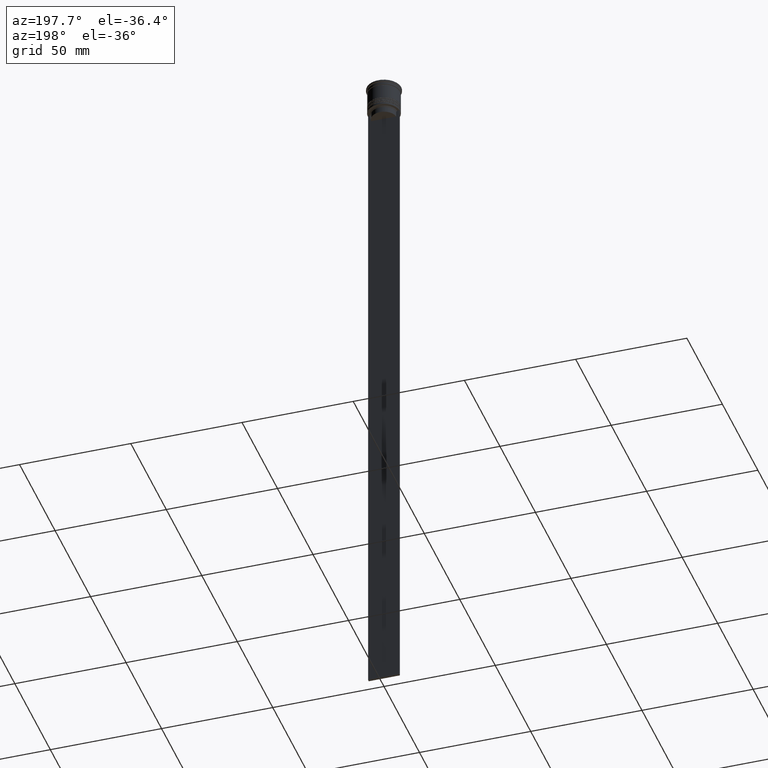
[diagram: clean part render]
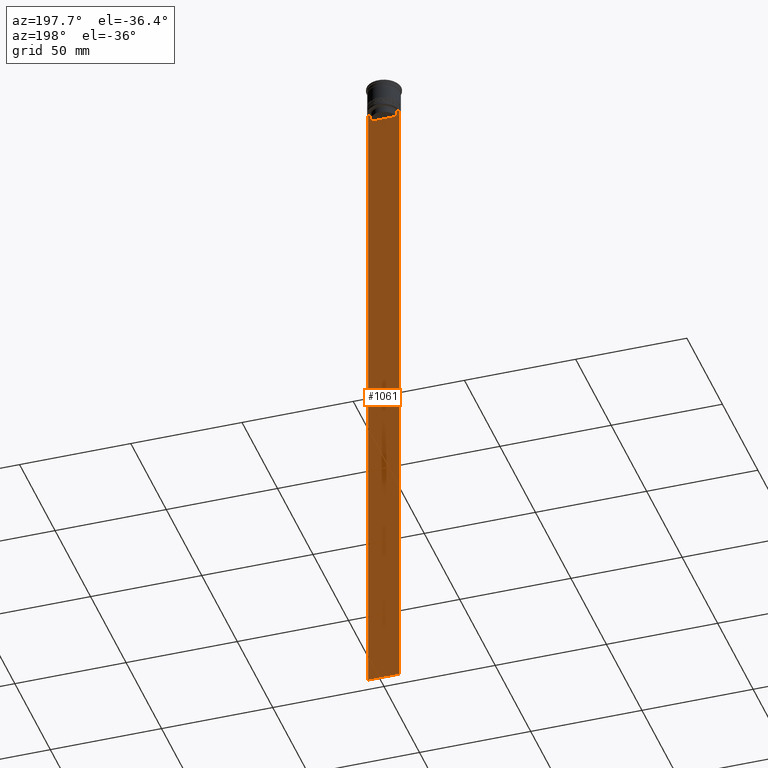
[diagram: same view with one face highlighted and labeled with its STEP entity id]
A machine part, auxiliary view. The second image highlights one B-rep face of the part: STEP entity #1061.
In plain terms, the highlighted planar face has unit normal (0, -1, -0).
Its self-contained STEP definition (entity closure, byte-faithful):
#9 = DIRECTION ( 'NONE',  ( 0.000000000000000000, 0.000000000000000000, -1.000000000000000000 ) ) ;
#15 = ORIENTED_EDGE ( 'NONE', *, *, #86, .T. ) ;
#36 = EDGE_CURVE ( 'NONE', #1085, #1526, #639, .T. ) ;
#47 = FACE_OUTER_BOUND ( 'NONE', #883, .T. ) ;
#56 = CARTESIAN_POINT ( 'NONE',  ( -5.627832620112292794, 0.4999999999999978351, -15.50000000000000000 ) ) ;
#70 = DIRECTION ( 'NONE',  ( 0.000000000000000000, 0.000000000000000000, -1.000000000000000000 ) ) ;
#86 = EDGE_CURVE ( 'NONE', #1589, #1859, #446, .T. ) ;
#124 = DIRECTION ( 'NONE',  ( 1.000000000000000000, 0.000000000000000000, 0.000000000000000000 ) ) ;
#135 = VERTEX_POINT ( 'NONE', #1002 ) ;
#204 = DIRECTION ( 'NONE',  ( 1.000000000000000000, 0.000000000000000000, 0.000000000000000000 ) ) ;
#207 = VECTOR ( 'NONE', #204, 1000.000000000000000 ) ;
#292 = EDGE_CURVE ( 'NONE', #135, #1589, #1833, .T. ) ;
#365 = VECTOR ( 'NONE', #2294, 1000.000000000000000 ) ;
#393 = CARTESIAN_POINT ( 'NONE',  ( 6.129641098791995368, 0.4999999999999978351, -12.50000000000000000 ) ) ;
#446 = LINE ( 'NONE', #1896, #731 ) ;
#447 = CARTESIAN_POINT ( 'NONE',  ( -6.129641098791995368, 0.4999999999999978351, -12.50000000000000000 ) ) ;
#470 = VECTOR ( 'NONE', #499, 1000.000000000000000 ) ;
#499 = DIRECTION ( 'NONE',  ( -1.000000000000000000, 0.000000000000000000, 0.000000000000000000 ) ) ;
#504 = CARTESIAN_POINT ( 'NONE',  ( -6.999999999999987566, 0.4999999999999978351, -312.5000000000000000 ) ) ;
#508 = CARTESIAN_POINT ( 'NONE',  ( 7.000000000000012434, 0.4999999999999978351, -312.5000000000000000 ) ) ;
#576 = ORIENTED_EDGE ( 'NONE', *, *, #608, .T. ) ;
#608 = EDGE_CURVE ( 'NONE', #1859, #2048, #1178, .T. ) ;
#639 = LINE ( 'NONE', #1918, #2169 ) ;
#693 = ORIENTED_EDGE ( 'NONE', *, *, #1848, .T. ) ;
#702 = VECTOR ( 'NONE', #124, 1000.000000000000000 ) ;
#712 = VERTEX_POINT ( 'NONE', #1613 ) ;
#731 = VECTOR ( 'NONE', #978, 1000.000000000000000 ) ;
#756 = CARTESIAN_POINT ( 'NONE',  ( 5.627832620112292794, 0.4999999999999978351, -13.00000000000000000 ) ) ;
#819 = CARTESIAN_POINT ( 'NONE',  ( 5.627832620112292794, 0.4999999999999978351, -13.00000000000000000 ) ) ;
#826 = CARTESIAN_POINT ( 'NONE',  ( 7.000000000000012434, 0.4999999999999978351, -12.50000000000000000 ) ) ;
#883 = EDGE_LOOP ( 'NONE', ( #1857, #2167, #1086, #1497, #1807, #693, #1446, #15, #576, #1928 ) ) ;
#937 = CARTESIAN_POINT ( 'NONE',  ( -5.795128834036803234, 0.4999999999999978351, -12.83336016107156574 ) ) ;
#976 = CARTESIAN_POINT ( 'NONE',  ( 5.627832620112292794, 0.4999999999999978351, -15.50000000000000000 ) ) ;
#978 = DIRECTION ( 'NONE',  ( 0.000000000000000000, 0.000000000000000000, -1.000000000000000000 ) ) ;
#979 = PLANE ( 'NONE',  #2292 ) ;
#990 = LINE ( 'NONE', #826, #702 ) ;
#1002 = CARTESIAN_POINT ( 'NONE',  ( 6.129641098791995368, 0.4999999999999978351, -12.50000000000000000 ) ) ;
#1042 = LINE ( 'NONE', #2267, #365 ) ;
#1061 = ADVANCED_FACE ( 'NONE', ( #47 ), #979, .F. ) ;
#1085 = VERTEX_POINT ( 'NONE', #56 ) ;
#1086 = ORIENTED_EDGE ( 'NONE', *, *, #1202, .T. ) ;
#1128 = VERTEX_POINT ( 'NONE', #2042 ) ;
#1130 = EDGE_CURVE ( 'NONE', #1541, #712, #1787, .T. ) ;
#1146 = CARTESIAN_POINT ( 'NONE',  ( -6.129641098791995368, 0.4999999999999978351, -12.50000000000000000 ) ) ;
#1178 = LINE ( 'NONE', #508, #470 ) ;
#1179 = CARTESIAN_POINT ( 'NONE',  ( 7.000000000000012434, 0.4999999999999978351, -12.50000000000000000 ) ) ;
#1187 = VECTOR ( 'NONE', #2152, 1000.000000000000000 ) ;
#1194 = VECTOR ( 'NONE', #9, 1000.000000000000000 ) ;
#1202 = EDGE_CURVE ( 'NONE', #712, #1085, #1042, .T. ) ;
#1245 = EDGE_CURVE ( 'NONE', #1128, #1541, #990, .T. ) ;
#1446 = ORIENTED_EDGE ( 'NONE', *, *, #292, .T. ) ;
#1451 = EDGE_CURVE ( 'NONE', #1128, #2048, #1468, .T. ) ;
#1459 = CARTESIAN_POINT ( 'NONE',  ( 5.795128760752291441, 0.4999999999999978351, -12.83336023406855020 ) ) ;
#1468 = LINE ( 'NONE', #2188, #1194 ) ;
#1497 = ORIENTED_EDGE ( 'NONE', *, *, #36, .T. ) ;
#1526 = VERTEX_POINT ( 'NONE', #976 ) ;
#1537 = CARTESIAN_POINT ( 'NONE',  ( -5.962396146966409738, 0.4999999999999978351, -12.66669130573587054 ) ) ;
#1541 = VERTEX_POINT ( 'NONE', #1146 ) ;
#1589 = VERTEX_POINT ( 'NONE', #1179 ) ;
#1613 = CARTESIAN_POINT ( 'NONE',  ( -5.627832620112292794, 0.4999999999999978351, -13.00000000000000000 ) ) ;
#1690 = DIRECTION ( 'NONE',  ( 1.000000000000000000, 0.000000000000000000, 0.000000000000000000 ) ) ;
#1712 = DIRECTION ( 'NONE',  ( 0.000000000000000000, -1.000000000000000000, -0.000000000000000000 ) ) ;
#1743 = CARTESIAN_POINT ( 'NONE',  ( 5.627832620112292794, 0.4999999999999978351, 0.000000000000000000 ) ) ;
#1787 = B_SPLINE_CURVE_WITH_KNOTS ( 'NONE', 3,
 ( #447, #1537, #937, #2223 ),
 .UNSPECIFIED., .F., .F.,
 ( 4, 4 ),
 ( 0.01045365750109871796, 0.01116204421161398619 ),
 .UNSPECIFIED. ) ;
#1792 = LINE ( 'NONE', #1743, #1187 ) ;
#1807 = ORIENTED_EDGE ( 'NONE', *, *, #2078, .T. ) ;
#1833 = LINE ( 'NONE', #2185, #207 ) ;
#1848 = EDGE_CURVE ( 'NONE', #1963, #135, #1909, .T. ) ;
#1856 = CARTESIAN_POINT ( 'NONE',  ( 5.962396079681187011, 0.4999999999999978351, -12.66669137279835411 ) ) ;
#1857 = ORIENTED_EDGE ( 'NONE', *, *, #1245, .T. ) ;
#1859 = VERTEX_POINT ( 'NONE', #2022 ) ;
#1896 = CARTESIAN_POINT ( 'NONE',  ( 7.000000000000012434, 0.4999999999999978351, 1.535668847618198329 ) ) ;
#1909 = B_SPLINE_CURVE_WITH_KNOTS ( 'NONE', 3,
 ( #756, #1459, #1856, #393 ),
 .UNSPECIFIED., .F., .F.,
 ( 4, 4 ),
 ( 0.02651134470867373347, 0.02721991123504337307 ),
 .UNSPECIFIED. ) ;
#1918 = CARTESIAN_POINT ( 'NONE',  ( 0.000000000000000000, 0.4999999999999978351, -15.50000000000000000 ) ) ;
#1928 = ORIENTED_EDGE ( 'NONE', *, *, #1451, .F. ) ;
#1963 = VERTEX_POINT ( 'NONE', #819 ) ;
#2022 = CARTESIAN_POINT ( 'NONE',  ( 7.000000000000012434, 0.4999999999999978351, -312.5000000000000000 ) ) ;
#2042 = CARTESIAN_POINT ( 'NONE',  ( -6.999999999999987566, 0.4999999999999980571, -12.50000000000000000 ) ) ;
#2048 = VERTEX_POINT ( 'NONE', #504 ) ;
#2078 = EDGE_CURVE ( 'NONE', #1526, #1963, #1792, .T. ) ;
#2152 = DIRECTION ( 'NONE',  ( -0.000000000000000000, -0.000000000000000000, 1.000000000000000000 ) ) ;
#2167 = ORIENTED_EDGE ( 'NONE', *, *, #1130, .T. ) ;
#2169 = VECTOR ( 'NONE', #1690, 1000.000000000000000 ) ;
#2185 = CARTESIAN_POINT ( 'NONE',  ( 7.000000000000012434, 0.4999999999999978351, -12.50000000000000000 ) ) ;
#2188 = CARTESIAN_POINT ( 'NONE',  ( -6.999999999999987566, 0.4999999999999978351, 1.535668847618198329 ) ) ;
#2223 = CARTESIAN_POINT ( 'NONE',  ( -5.627832620112292794, 0.4999999999999978351, -13.00000000000000000 ) ) ;
#2256 = CARTESIAN_POINT ( 'NONE',  ( 7.000000000000012434, 0.4999999999999978351, 1.535668847618198329 ) ) ;
#2267 = CARTESIAN_POINT ( 'NONE',  ( -5.627832620112292794, 0.4999999999999978351, 0.000000000000000000 ) ) ;
#2292 = AXIS2_PLACEMENT_3D ( 'NONE', #2256, #1712, #70 ) ;
#2294 = DIRECTION ( 'NONE',  ( 0.000000000000000000, 0.000000000000000000, -1.000000000000000000 ) ) ;